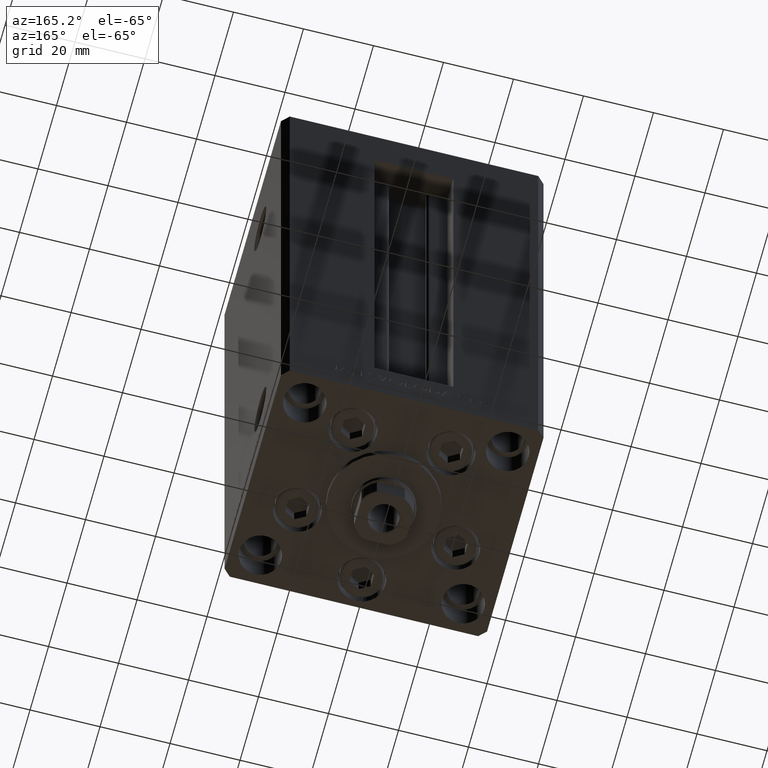
[diagram: clean part render]
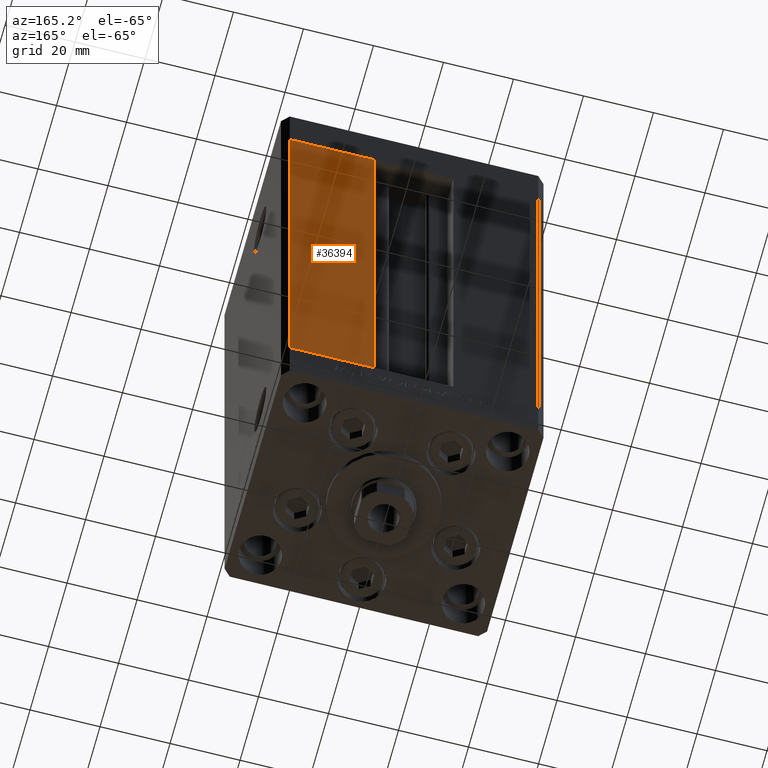
[diagram: same view with one face highlighted and labeled with its STEP entity id]
A machine part, auxiliary view. The second image highlights one B-rep face of the part: STEP entity #36394.
In plain terms, the highlighted planar face has unit normal (0, -1, 0).
Its self-contained STEP definition (entity closure, byte-faithful):
#619 = DIRECTION ( 'NONE',  ( 1.000000000000000000, 0.000000000000000000, 0.000000000000000000 ) ) ;
#806 = VECTOR ( 'NONE', #619, 1000.000000000000000 ) ;
#901 = DIRECTION ( 'NONE',  ( 0.000000000000000000, -1.000000000000000000, 0.000000000000000000 ) ) ;
#3879 = LINE ( 'NONE', #22576, #22937 ) ;
#8364 = DIRECTION ( 'NONE',  ( 0.000000000000000000, -0.000000000000000000, -1.000000000000000000 ) ) ;
#10357 = AXIS2_PLACEMENT_3D ( 'NONE', #43014, #901, #8364 ) ;
#16139 = LINE ( 'NONE', #31346, #26772 ) ;
#16323 = ORIENTED_EDGE ( 'NONE', *, *, #40614, .T. ) ;
#17356 = VERTEX_POINT ( 'NONE', #42839 ) ;
#18282 = VERTEX_POINT ( 'NONE', #24694 ) ;
#22576 = CARTESIAN_POINT ( 'NONE',  ( -11.25000000000000178, 32.49999999999999289, 0.000000000000000000 ) ) ;
#22937 = VECTOR ( 'NONE', #31028, 1000.000000000000000 ) ;
#23004 = CARTESIAN_POINT ( 'NONE',  ( 11.24999999999999467, 32.49999999999999289, 136.0000000000000000 ) ) ;
#23329 = DIRECTION ( 'NONE',  ( -0.000000000000000000, -0.000000000000000000, 1.000000000000000000 ) ) ;
#24061 = FACE_OUTER_BOUND ( 'NONE', #43162, .T. ) ;
#24308 = EDGE_CURVE ( 'NONE', #17356, #18282, #16139, .T. ) ;
#24694 = CARTESIAN_POINT ( 'NONE',  ( 35.50000000000000000, 32.49999999999999289, 0.000000000000000000 ) ) ;
#26022 = VERTEX_POINT ( 'NONE', #34866 ) ;
#26772 = VECTOR ( 'NONE', #46561, 1000.000000000000000 ) ;
#27385 = EDGE_CURVE ( 'NONE', #18282, #26022, #3879, .T. ) ;
#30804 = LINE ( 'NONE', #34044, #39218 ) ;
#31028 = DIRECTION ( 'NONE',  ( -1.000000000000000000, 0.000000000000000000, 0.000000000000000000 ) ) ;
#31052 = PLANE ( 'NONE',  #10357 ) ;
#31346 = CARTESIAN_POINT ( 'NONE',  ( 35.50000000000000000, 32.49999999999999289, 136.0000000000000000 ) ) ;
#33740 = EDGE_CURVE ( 'NONE', #34754, #17356, #38492, .T. ) ;
#34044 = CARTESIAN_POINT ( 'NONE',  ( 11.25000000000000178, 32.49999999999999289, 0.000000000000000000 ) ) ;
#34747 = CARTESIAN_POINT ( 'NONE',  ( -11.25000000000000178, 32.49999999999999289, 136.0000000000000000 ) ) ;
#34754 = VERTEX_POINT ( 'NONE', #23004 ) ;
#34866 = CARTESIAN_POINT ( 'NONE',  ( 11.25000000000000178, 32.49999999999999289, 0.000000000000000000 ) ) ;
#36394 = ADVANCED_FACE ( 'NONE', ( #24061 ), #31052, .F. ) ;
#38492 = LINE ( 'NONE', #34747, #806 ) ;
#38996 = ORIENTED_EDGE ( 'NONE', *, *, #24308, .T. ) ;
#39218 = VECTOR ( 'NONE', #23329, 1000.000000000000000 ) ;
#40614 = EDGE_CURVE ( 'NONE', #26022, #34754, #30804, .T. ) ;
#41706 = ORIENTED_EDGE ( 'NONE', *, *, #27385, .T. ) ;
#42128 = ORIENTED_EDGE ( 'NONE', *, *, #33740, .T. ) ;
#42839 = CARTESIAN_POINT ( 'NONE',  ( 35.50000000000000000, 32.49999999999999289, 136.0000000000000000 ) ) ;
#43014 = CARTESIAN_POINT ( 'NONE',  ( -11.25000000000000178, 32.49999999999999289, 136.0000000000000000 ) ) ;
#43162 = EDGE_LOOP ( 'NONE', ( #41706, #16323, #42128, #38996 ) ) ;
#46561 = DIRECTION ( 'NONE',  ( -0.000000000000000000, -0.000000000000000000, -1.000000000000000000 ) ) ;